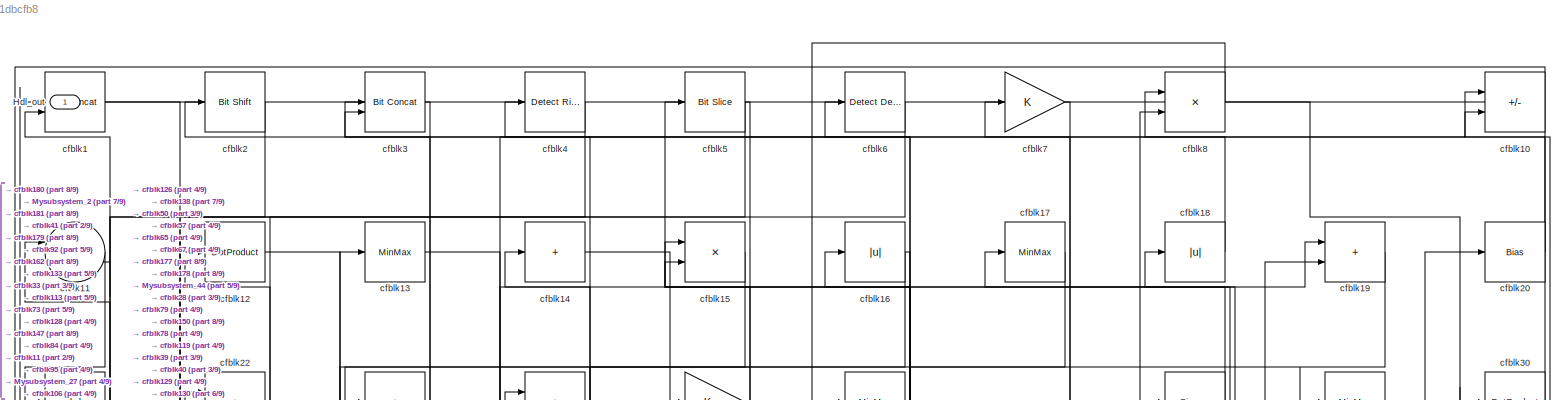
[diagram: root canvas - part 1/9, full width, top band]
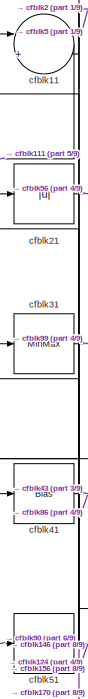
[diagram: root canvas - part 2/9, top left region]
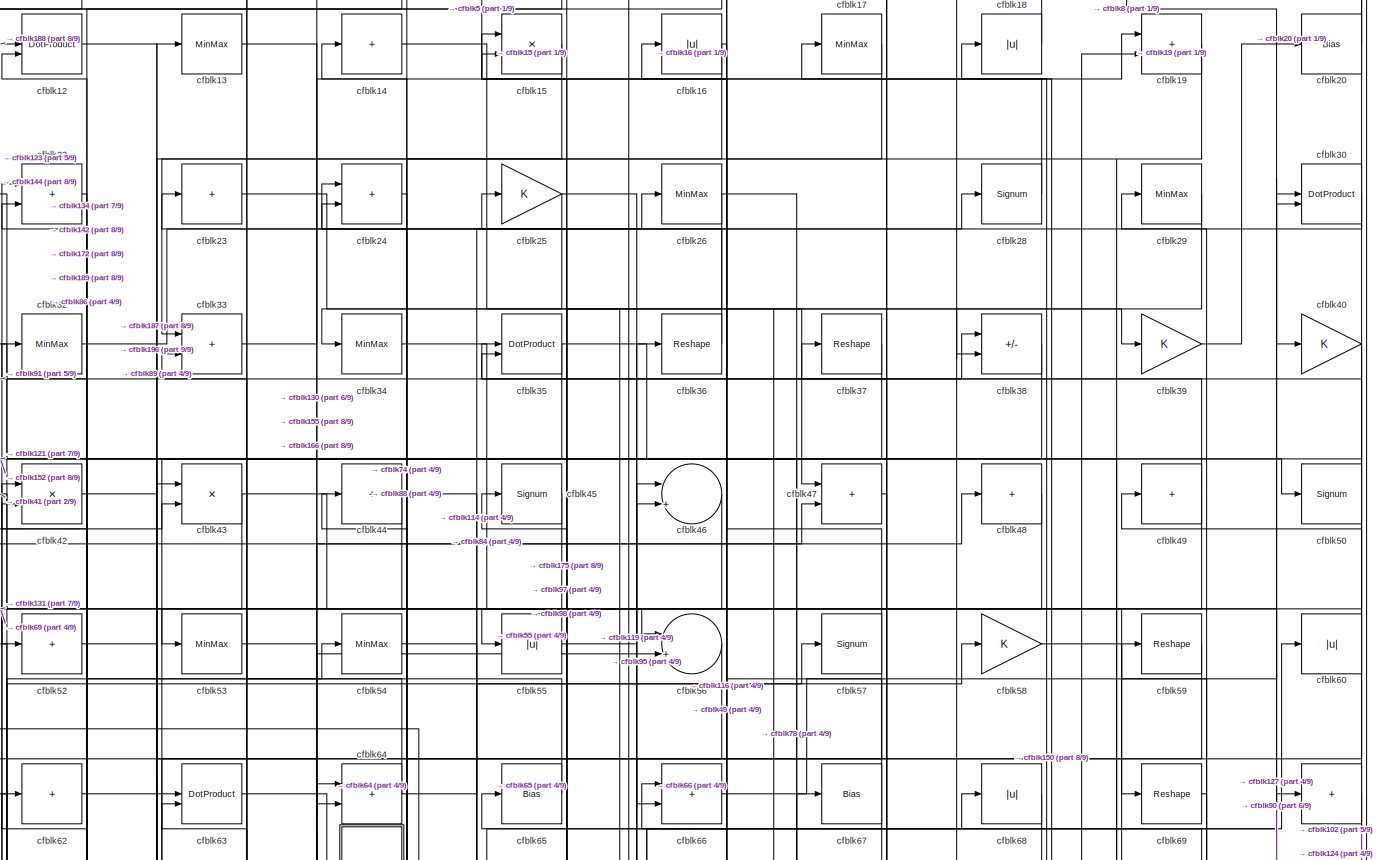
[diagram: root canvas - part 3/9, full width, top band]
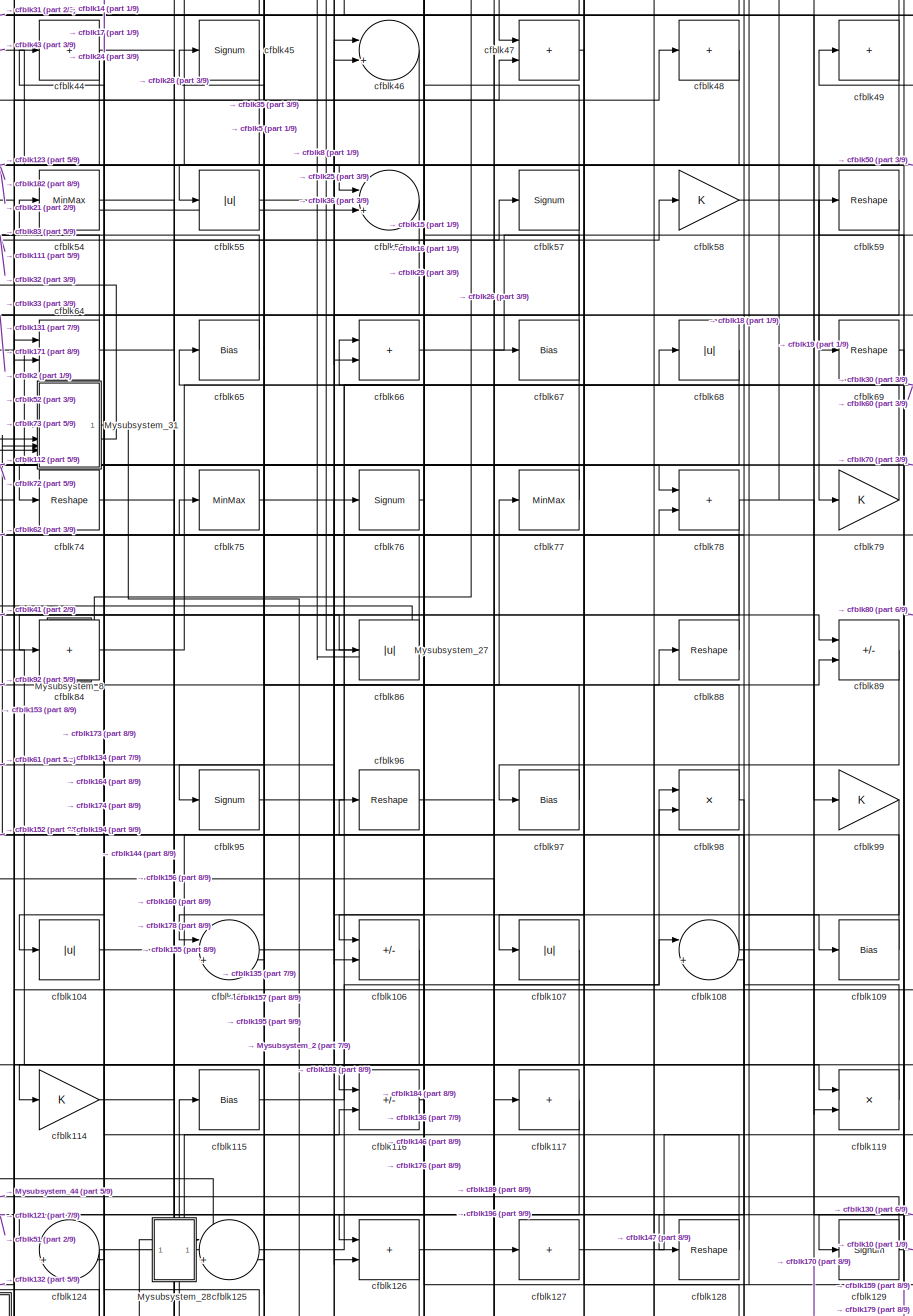
[diagram: root canvas - part 4/9, central region]
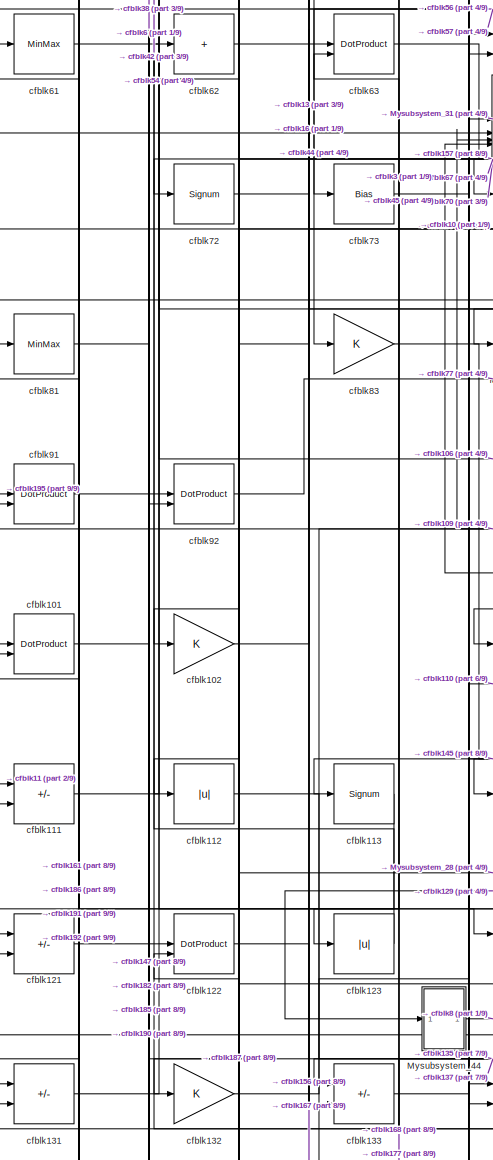
[diagram: root canvas - part 5/9, middle left region]
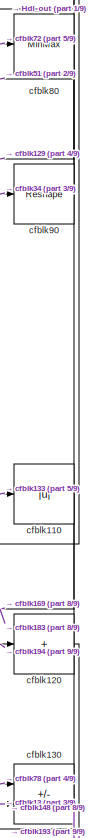
[diagram: root canvas - part 6/9, middle right region]
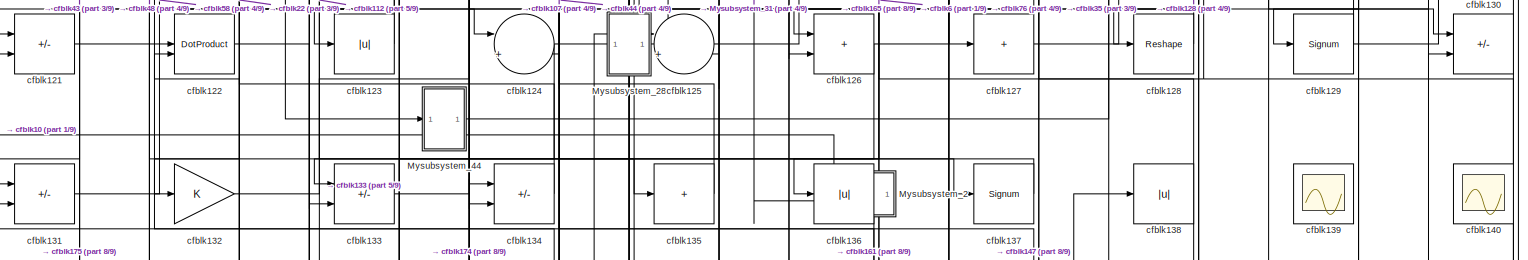
[diagram: root canvas - part 7/9, full width, middle band]
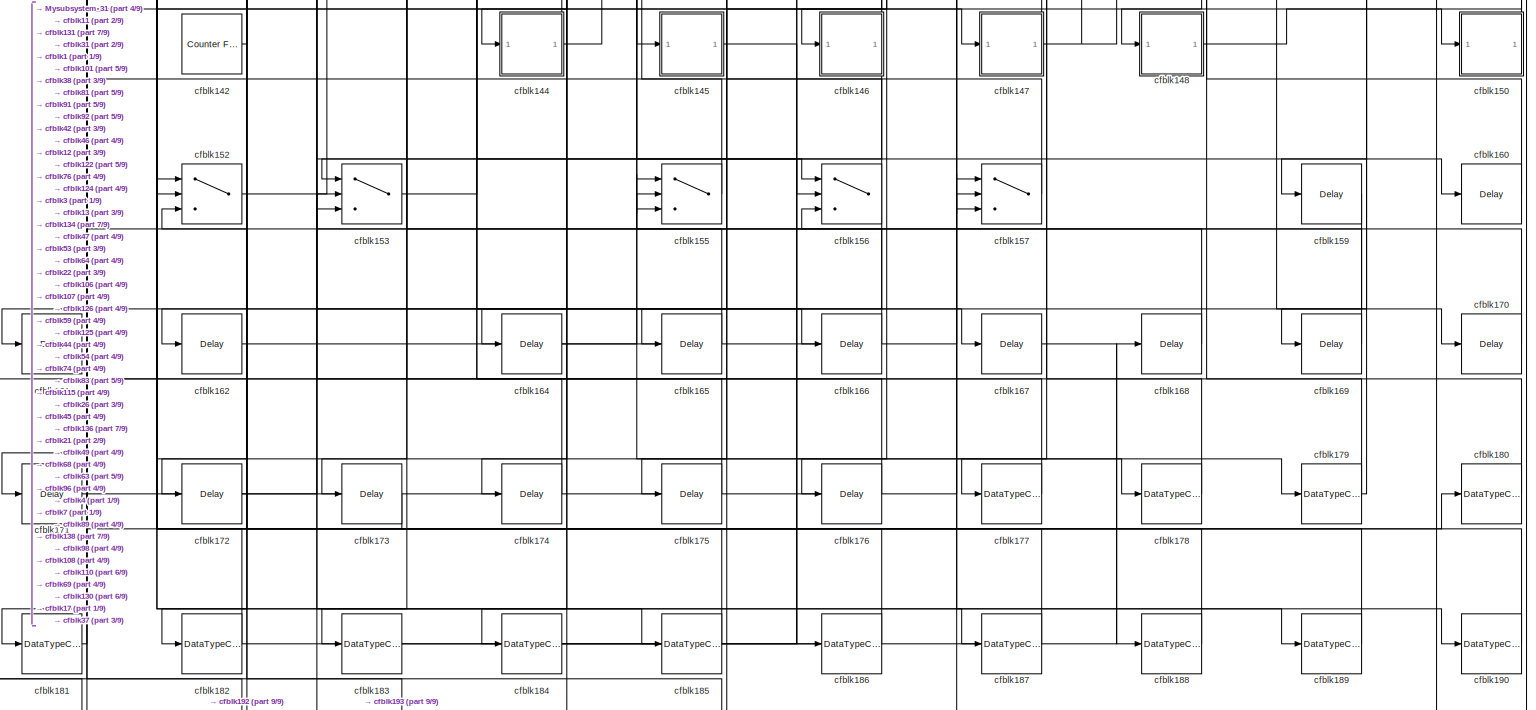
[diagram: root canvas - part 8/9, full width, bottom band]
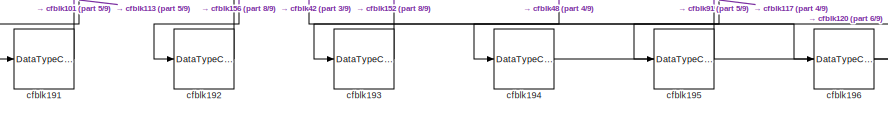
[diagram: root canvas - part 9/9, bottom left region]
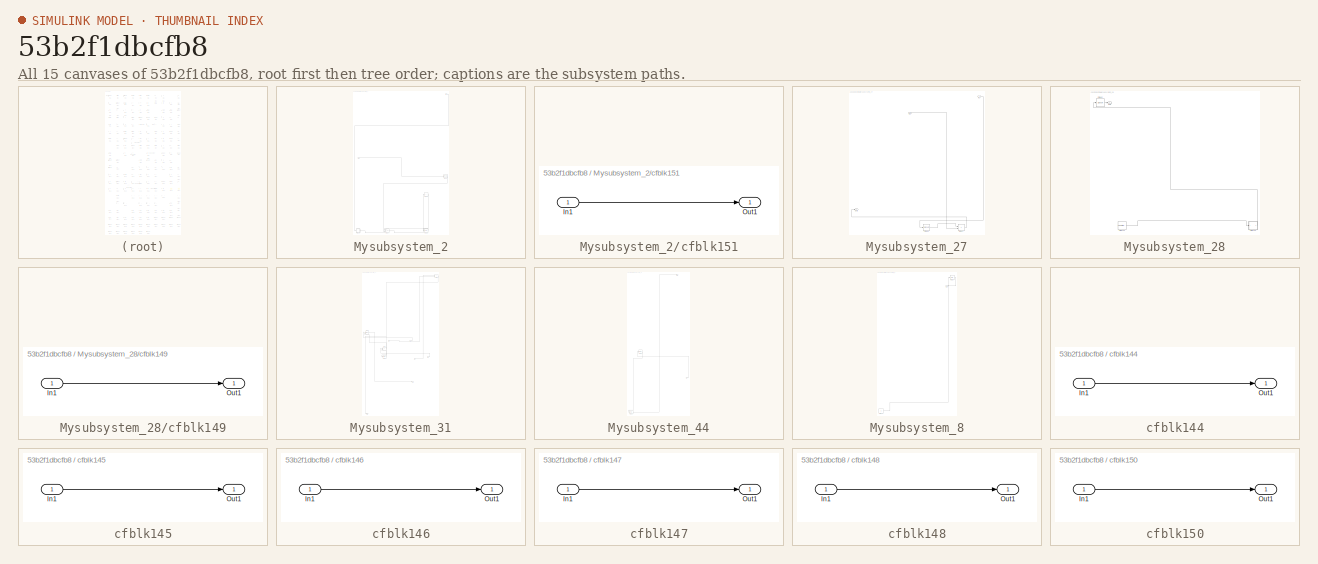
[diagram: thumbnail index - all 15 canvases of the model, root first then tree order]
MODEL slx_53b2f1dbcfb8
KIND model
CONFIG AbsTol = auto
CONFIG EnableMultiTasking = off
CONFIG FixedStep = auto
CONFIG MaxStep = auto
CONFIG MinStep = auto
CONFIG RelTol = 1e-3
CONFIG SampleTimeConstraint = Unconstrained
CONFIG SolverName = VariableStepAuto
CONFIG StartTime = 0.0
CONFIG StopTime = 10.0
BLOCK [Outport] Hdl_out
  OutDataTypeStr = uint8
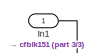
[diagram: Mysubsystem_2 - part 1/3, top right region]
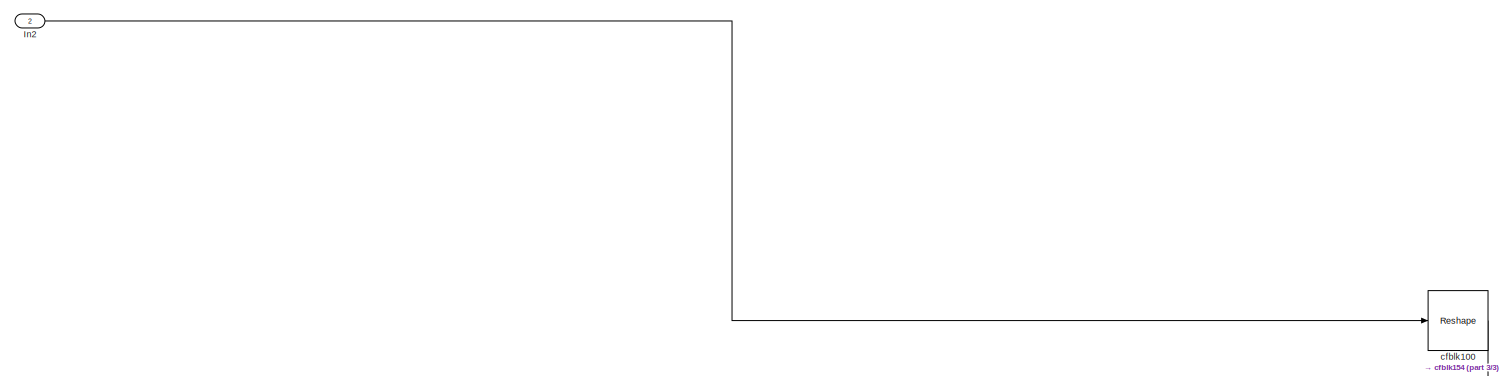
[diagram: Mysubsystem_2 - part 2/3, full width, middle band]
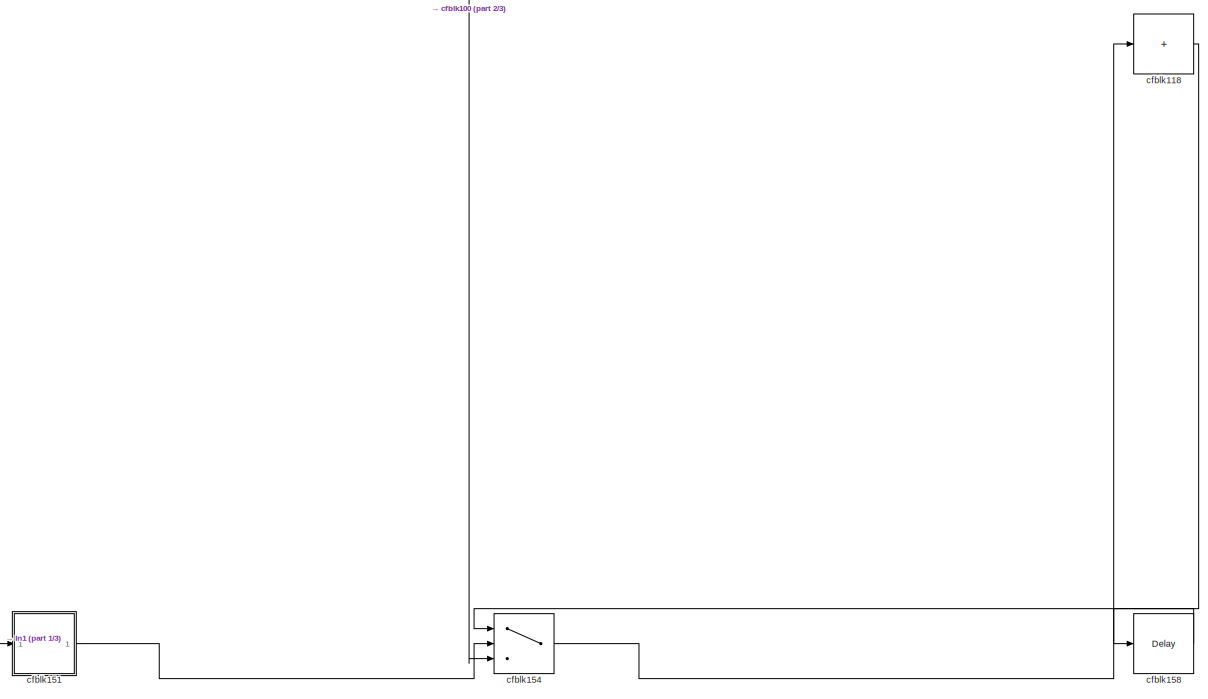
[diagram: Mysubsystem_2 - part 3/3, full width, bottom band]
BLOCK [SubSystem] Mysubsystem_2
  RTWFcnName = Mysubsystem_2
  RTWFcnNameOpts = User specified
  RTWFileNameOpts = Use function name
  RTWSystemCode = Reusable function
  TreatAsAtomicUnit = on
BLOCK [Inport] Mysubsystem_2/In1
BLOCK [Inport] Mysubsystem_2/In2
  Port = 2
BLOCK [Reshape] Mysubsystem_2/cfblk100
BLOCK [Sum] Mysubsystem_2/cfblk118
  IconShape = rectangular
  Inputs = +
BLOCK [SubSystem] Mysubsystem_2/cfblk151
  LibrarySourceBlock = hdlsllib/Ports &\nSubsystems/Subsystem
BLOCK [Inport] Mysubsystem_2/cfblk151/In1
BLOCK [Outport] Mysubsystem_2/cfblk151/Out1
BLOCK [Switch] Mysubsystem_2/cfblk154
  InputSameDT = off
  SaturateOnIntegerOverflow = off
BLOCK [Delay] Mysubsystem_2/cfblk158
  InputPortMap = u0
  SampleTime = 1
BLOCK [SubSystem] Mysubsystem_27
  RTWFcnName = Mysubsystem_27
  RTWFcnNameOpts = User specified
  RTWFileNameOpts = Use function name
  RTWSystemCode = Reusable function
  TreatAsAtomicUnit = on
BLOCK [Inport] Mysubsystem_27/In1
BLOCK [Inport] Mysubsystem_27/In2
  Port = 2
BLOCK [Outport] Mysubsystem_27/Out1
BLOCK [Signum] Mysubsystem_27/cfblk85
BLOCK [Sum] Mysubsystem_27/cfblk87
  IconShape = rectangular
BLOCK [SubSystem] Mysubsystem_28
  RTWFcnName = Mysubsystem_28
  RTWFcnNameOpts = User specified
  RTWFileNameOpts = Use function name
  RTWSystemCode = Reusable function
  TreatAsAtomicUnit = on
BLOCK [Outport] Mysubsystem_28/Out1
BLOCK [Reference] Mysubsystem_28/cfblk143  REF=hdlsllib/Sources/Counter
Limited
  SourceBlock = hdlsllib/Sources/Counter\nLimited
  SourceType = Counter Limited
BLOCK [SubSystem] Mysubsystem_28/cfblk149
  LibrarySourceBlock = hdlsllib/Ports &\nSubsystems/Subsystem
BLOCK [Inport] Mysubsystem_28/cfblk149/In1
BLOCK [Outport] Mysubsystem_28/cfblk149/Out1
BLOCK [Signum] Mysubsystem_28/cfblk82
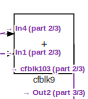
[diagram: Mysubsystem_31 - part 1/3, top right region]
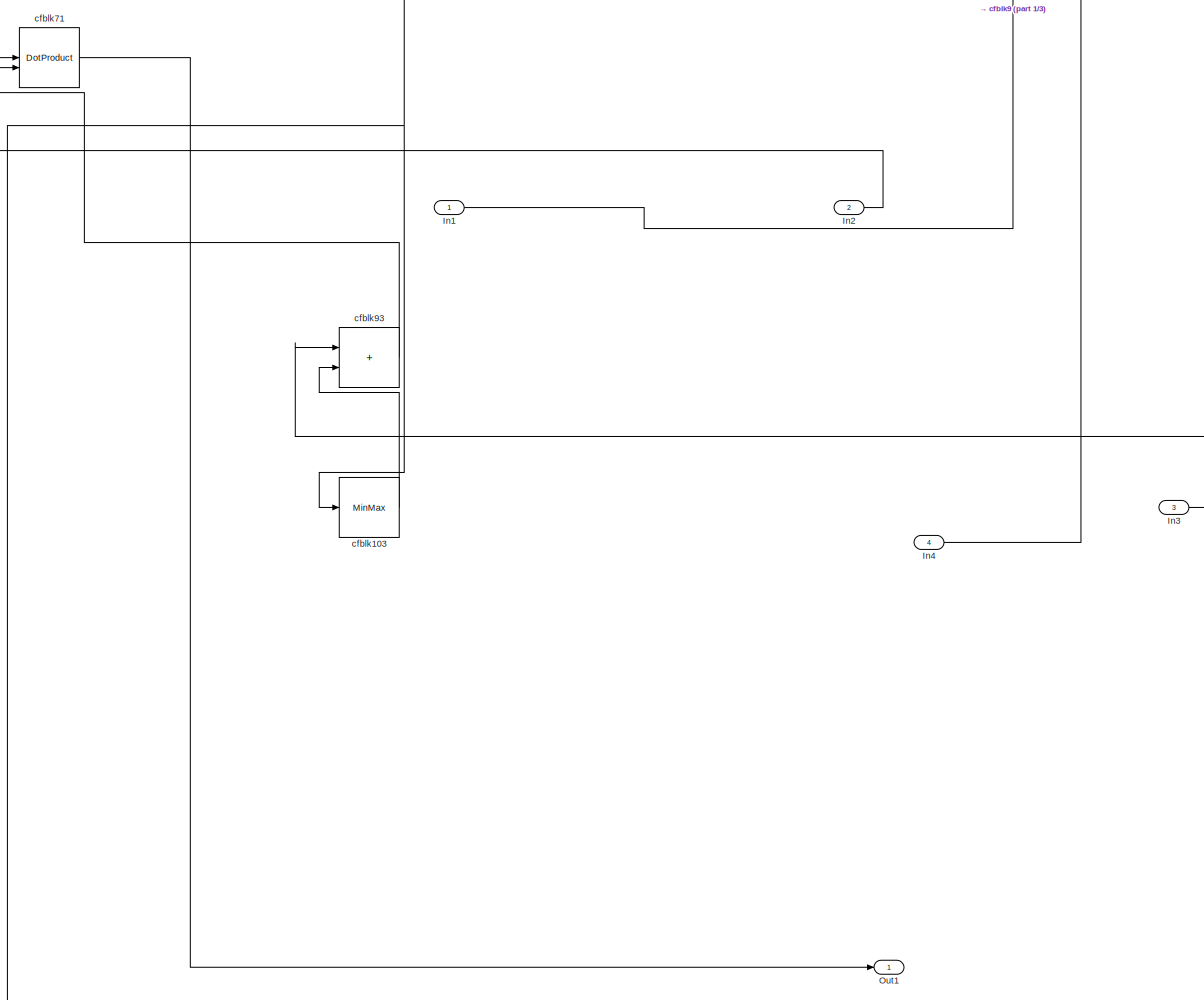
[diagram: Mysubsystem_31 - part 2/3, full width, middle band]
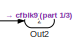
[diagram: Mysubsystem_31 - part 3/3, bottom left region]
BLOCK [SubSystem] Mysubsystem_31
  RTWFcnName = Mysubsystem_31
  RTWFcnNameOpts = User specified
  RTWFileNameOpts = Use function name
  RTWSystemCode = Reusable function
  TreatAsAtomicUnit = on
BLOCK [Inport] Mysubsystem_31/In1
BLOCK [Inport] Mysubsystem_31/In2
  Port = 2
BLOCK [Inport] Mysubsystem_31/In3
  Port = 3
BLOCK [Inport] Mysubsystem_31/In4
  Port = 4
BLOCK [Outport] Mysubsystem_31/Out1
BLOCK [Outport] Mysubsystem_31/Out2
  Port = 2
BLOCK [MinMax] Mysubsystem_31/cfblk103
BLOCK [DotProduct] Mysubsystem_31/cfblk71
  OutDataTypeStr = Inherit: Inherit via internal rule
BLOCK [Sum] Mysubsystem_31/cfblk9
  IconShape = rectangular
BLOCK [Sum] Mysubsystem_31/cfblk93
  IconShape = rectangular
BLOCK [SubSystem] Mysubsystem_44
  RTWFcnName = Mysubsystem_44
  RTWFcnNameOpts = User specified
  RTWFileNameOpts = Use function name
  RTWSystemCode = Reusable function
  TreatAsAtomicUnit = on
BLOCK [Inport] Mysubsystem_44/In1
BLOCK [Outport] Mysubsystem_44/Out1
BLOCK [Delay] Mysubsystem_44/cfblk163
  InputPortMap = u0
  SampleTime = 1
BLOCK [MinMax] Mysubsystem_44/cfblk94
BLOCK [SubSystem] Mysubsystem_8
  RTWFcnName = Mysubsystem_8
  RTWFcnNameOpts = User specified
  RTWFileNameOpts = Use function name
  RTWSystemCode = Reusable function
  TreatAsAtomicUnit = on
BLOCK [Outport] Mysubsystem_8/Out1
BLOCK [Constant] Mysubsystem_8/cfblk141
  SampleTime = -1
BLOCK [Bias] Mysubsystem_8/cfblk27
  Bias = 0.0
  SaturateOnIntegerOverflow = off
BLOCK [Reference] cfblk1  REF=hdlsllib/Logic and Bit
Operations/Bit Concat
  SourceBlock = hdlsllib/Logic and Bit\nOperations/Bit Concat
  SourceType = Bit Concat
BLOCK [Sum] cfblk10
  IconShape = rectangular
  Inputs = +-
  OutDataTypeStr = uint8
BLOCK [DotProduct] cfblk101
  OutDataTypeStr = uint8
BLOCK [Gain] cfblk102
  OutDataTypeStr = uint8
BLOCK [Abs] cfblk104
  OutDataTypeStr = uint8
  SaturateOnIntegerOverflow = off
BLOCK [Sum] cfblk105
  Inputs = |++
  OutDataTypeStr = uint8
BLOCK [Sum] cfblk106
  IconShape = rectangular
  Inputs = +-
  OutDataTypeStr = uint8
BLOCK [Abs] cfblk107
  OutDataTypeStr = uint8
  SaturateOnIntegerOverflow = off
BLOCK [Sum] cfblk108
  Inputs = |++
  OutDataTypeStr = uint8
BLOCK [Bias] cfblk109
  Bias = 0.0
  SaturateOnIntegerOverflow = off
BLOCK [Sum] cfblk11
  Inputs = |++
  OutDataTypeStr = uint8
BLOCK [Abs] cfblk110
  OutDataTypeStr = uint8
  SaturateOnIntegerOverflow = off
BLOCK [Sum] cfblk111
  IconShape = rectangular
  Inputs = +-
  OutDataTypeStr = uint8
BLOCK [Abs] cfblk112
  OutDataTypeStr = uint8
  SaturateOnIntegerOverflow = off
BLOCK [Signum] cfblk113
BLOCK [Gain] cfblk114
  OutDataTypeStr = uint8
BLOCK [Bias] cfblk115
  Bias = 0.0
  SaturateOnIntegerOverflow = off
BLOCK [Sum] cfblk116
  IconShape = rectangular
  Inputs = +-
  OutDataTypeStr = uint8
BLOCK [Sum] cfblk117
  IconShape = rectangular
  Inputs = +
  OutDataTypeStr = uint8
BLOCK [Product] cfblk119
  Inputs = */
  OutDataTypeStr = uint8
  RndMeth = Zero
  SaturateOnIntegerOverflow = on
BLOCK [DotProduct] cfblk12
  OutDataTypeStr = uint8
BLOCK [Sum] cfblk120
  IconShape = rectangular
  Inputs = +
  OutDataTypeStr = uint8
BLOCK [Sum] cfblk121
  IconShape = rectangular
  Inputs = +-
  OutDataTypeStr = uint8
BLOCK [DotProduct] cfblk122
  OutDataTypeStr = uint8
BLOCK [Abs] cfblk123
  OutDataTypeStr = uint8
  SaturateOnIntegerOverflow = off
BLOCK [Sum] cfblk124
  Inputs = |++
  OutDataTypeStr = uint8
BLOCK [Sum] cfblk125
  Inputs = |++
  OutDataTypeStr = uint8
BLOCK [Sum] cfblk126
  IconShape = rectangular
  OutDataTypeStr = uint8
BLOCK [Sum] cfblk127
  IconShape = rectangular
  Inputs = +
  OutDataTypeStr = uint8
BLOCK [Reshape] cfblk128
BLOCK [Signum] cfblk129
BLOCK [MinMax] cfblk13
  OutDataTypeStr = uint8
BLOCK [Sum] cfblk130
  IconShape = rectangular
  Inputs = +-
  OutDataTypeStr = uint8
BLOCK [Sum] cfblk131
  IconShape = rectangular
  Inputs = +-
  OutDataTypeStr = uint8
BLOCK [Gain] cfblk132
  OutDataTypeStr = uint8
BLOCK [Sum] cfblk133
  IconShape = rectangular
  Inputs = +-
  OutDataTypeStr = uint8
BLOCK [Sum] cfblk134
  IconShape = rectangular
  Inputs = +-
  OutDataTypeStr = uint8
BLOCK [Sum] cfblk135
  IconShape = rectangular
  Inputs = +
  OutDataTypeStr = uint8
BLOCK [Abs] cfblk136
  OutDataTypeStr = uint8
  SaturateOnIntegerOverflow = off
BLOCK [Signum] cfblk137
BLOCK [Abs] cfblk138
  OutDataTypeStr = uint8
  SaturateOnIntegerOverflow = off
BLOCK [Scope] cfblk139
  Floating = on
  NumInputPorts = 1
  ScopeSpecificationString = Simulink.scopes.TimeScopeBlockCfg('CurrentConfiguration', extmgr.ConfigurationSet(extmgr.Configuration('Core','General UI',true,'FigureColor',[0.156862745098039 0.156862745098039 0.156862745098039]),extmgr.Configuration('Core','Source UI',true),extmgr.Configuration('Sources','WiredSimulink',true,'DataLoggingVariableName','ScopeData1','DataLoggingSaveFormat','StructureWithTime','DataLoggingLimitDat...<+2713ch>
BLOCK [Sum] cfblk14
  IconShape = rectangular
  Inputs = +
  OutDataTypeStr = uint8
BLOCK [Scope] cfblk140
  Floating = on
  NumInputPorts = 1
  ScopeSpecificationString = Simulink.scopes.TimeScopeBlockCfg('CurrentConfiguration', extmgr.ConfigurationSet(extmgr.Configuration('Core','General UI',true,'FigureColor',[0.156862745098039 0.156862745098039 0.156862745098039]),extmgr.Configuration('Core','Source UI',true),extmgr.Configuration('Sources','WiredSimulink',true,'DataLoggingVariableName','ScopeData1','DataLoggingSaveFormat','StructureWithTime','DataLoggingLimitDat...<+2713ch>
BLOCK [Reference] cfblk142  REF=hdlsllib/Sources/Counter
Free-Running
  SourceBlock = hdlsllib/Sources/Counter\nFree-Running
  SourceType = Counter Free-Running
BLOCK [SubSystem] cfblk144
  LibrarySourceBlock = hdlsllib/Ports &\nSubsystems/Subsystem
BLOCK [Inport] cfblk144/In1
BLOCK [Outport] cfblk144/Out1
BLOCK [SubSystem] cfblk145
  LibrarySourceBlock = hdlsllib/Ports &\nSubsystems/Subsystem
BLOCK [Inport] cfblk145/In1
BLOCK [Outport] cfblk145/Out1
BLOCK [SubSystem] cfblk146
  LibrarySourceBlock = hdlsllib/Ports &\nSubsystems/Subsystem
BLOCK [Inport] cfblk146/In1
BLOCK [Outport] cfblk146/Out1
BLOCK [SubSystem] cfblk147
  LibrarySourceBlock = hdlsllib/Ports &\nSubsystems/Subsystem
BLOCK [Inport] cfblk147/In1
BLOCK [Outport] cfblk147/Out1
BLOCK [SubSystem] cfblk148
  LibrarySourceBlock = hdlsllib/Ports &\nSubsystems/Subsystem
BLOCK [Inport] cfblk148/In1
BLOCK [Outport] cfblk148/Out1
BLOCK [Product] cfblk15
  Inputs = */
  OutDataTypeStr = uint8
  RndMeth = Zero
  SaturateOnIntegerOverflow = on
BLOCK [SubSystem] cfblk150
  LibrarySourceBlock = hdlsllib/Ports &\nSubsystems/Subsystem
BLOCK [Inport] cfblk150/In1
BLOCK [Outport] cfblk150/Out1
BLOCK [Switch] cfblk152
  InputSameDT = off
  OutDataTypeStr = uint8
  SaturateOnIntegerOverflow = off
BLOCK [Switch] cfblk153
  InputSameDT = off
  OutDataTypeStr = uint8
  SaturateOnIntegerOverflow = off
BLOCK [Switch] cfblk155
  InputSameDT = off
  OutDataTypeStr = uint8
  SaturateOnIntegerOverflow = off
BLOCK [Switch] cfblk156
  InputSameDT = off
  OutDataTypeStr = uint8
  SaturateOnIntegerOverflow = off
BLOCK [Switch] cfblk157
  InputSameDT = off
  OutDataTypeStr = uint8
  SaturateOnIntegerOverflow = off
BLOCK [Delay] cfblk159
  InputPortMap = u0
  SampleTime = 1
BLOCK [Abs] cfblk16
  OutDataTypeStr = uint8
  SaturateOnIntegerOverflow = off
BLOCK [Delay] cfblk160
  InputPortMap = u0
  SampleTime = 1
BLOCK [Delay] cfblk161
  InputPortMap = u0
  SampleTime = 1
BLOCK [Delay] cfblk162
  InputPortMap = u0
  SampleTime = 1
BLOCK [Delay] cfblk164
  InputPortMap = u0
  SampleTime = 1
BLOCK [Delay] cfblk165
  InputPortMap = u0
  SampleTime = 1
BLOCK [Delay] cfblk166
  InputPortMap = u0
  SampleTime = 1
BLOCK [Delay] cfblk167
  InputPortMap = u0
  SampleTime = 1
BLOCK [Delay] cfblk168
  InputPortMap = u0
  SampleTime = 1
BLOCK [Delay] cfblk169
  InputPortMap = u0
  SampleTime = 1
BLOCK [MinMax] cfblk17
  OutDataTypeStr = uint8
BLOCK [Delay] cfblk170
  InputPortMap = u0
  SampleTime = 1
BLOCK [Delay] cfblk171
  InputPortMap = u0
  SampleTime = 1
BLOCK [Delay] cfblk172
  InputPortMap = u0
  SampleTime = 1
BLOCK [Delay] cfblk173
  InputPortMap = u0
  SampleTime = 1
BLOCK [Delay] cfblk174
  InputPortMap = u0
  SampleTime = 1
BLOCK [Delay] cfblk175
  InputPortMap = u0
  SampleTime = 1
BLOCK [Delay] cfblk176
  InputPortMap = u0
  SampleTime = 1
BLOCK [DataTypeConversion] cfblk177
  OutDataTypeStr = uint8
  RndMeth = Floor
  SaturateOnIntegerOverflow = off
BLOCK [DataTypeConversion] cfblk178
  OutDataTypeStr = uint8
  RndMeth = Floor
  SaturateOnIntegerOverflow = off
BLOCK [DataTypeConversion] cfblk179
  OutDataTypeStr = uint8
  RndMeth = Floor
  SaturateOnIntegerOverflow = off
BLOCK [Abs] cfblk18
  OutDataTypeStr = uint8
  SaturateOnIntegerOverflow = off
BLOCK [DataTypeConversion] cfblk180
  OutDataTypeStr = uint8
  RndMeth = Floor
  SaturateOnIntegerOverflow = off
BLOCK [DataTypeConversion] cfblk181
  OutDataTypeStr = uint8
  RndMeth = Floor
  SaturateOnIntegerOverflow = off
BLOCK [DataTypeConversion] cfblk182
  OutDataTypeStr = uint8
  RndMeth = Floor
  SaturateOnIntegerOverflow = off
BLOCK [DataTypeConversion] cfblk183
  OutDataTypeStr = uint8
  RndMeth = Floor
  SaturateOnIntegerOverflow = off
BLOCK [DataTypeConversion] cfblk184
  OutDataTypeStr = uint8
  RndMeth = Floor
  SaturateOnIntegerOverflow = off
BLOCK [DataTypeConversion] cfblk185
  OutDataTypeStr = uint8
  RndMeth = Floor
  SaturateOnIntegerOverflow = off
BLOCK [DataTypeConversion] cfblk186
  OutDataTypeStr = uint8
  RndMeth = Floor
  SaturateOnIntegerOverflow = off
BLOCK [DataTypeConversion] cfblk187
  OutDataTypeStr = uint8
  RndMeth = Floor
  SaturateOnIntegerOverflow = off
BLOCK [DataTypeConversion] cfblk188
  OutDataTypeStr = uint8
  RndMeth = Floor
  SaturateOnIntegerOverflow = off
BLOCK [DataTypeConversion] cfblk189
  OutDataTypeStr = uint8
  RndMeth = Floor
  SaturateOnIntegerOverflow = off
BLOCK [Sum] cfblk19
  IconShape = rectangular
  OutDataTypeStr = uint8
BLOCK [DataTypeConversion] cfblk190
  OutDataTypeStr = uint8
  RndMeth = Floor
  SaturateOnIntegerOverflow = off
BLOCK [DataTypeConversion] cfblk191
  OutDataTypeStr = uint8
  RndMeth = Floor
  SaturateOnIntegerOverflow = off
BLOCK [DataTypeConversion] cfblk192
  OutDataTypeStr = uint8
  RndMeth = Floor
  SaturateOnIntegerOverflow = off
BLOCK [DataTypeConversion] cfblk193
  OutDataTypeStr = uint8
  RndMeth = Floor
  SaturateOnIntegerOverflow = off
BLOCK [DataTypeConversion] cfblk194
  OutDataTypeStr = uint8
  RndMeth = Floor
  SaturateOnIntegerOverflow = off
BLOCK [DataTypeConversion] cfblk195
  OutDataTypeStr = uint8
  RndMeth = Floor
  SaturateOnIntegerOverflow = off
BLOCK [DataTypeConversion] cfblk196
  OutDataTypeStr = uint8
  RndMeth = Floor
  SaturateOnIntegerOverflow = off
BLOCK [Reference] cfblk2  REF=hdlsllib/Logic and Bit
Operations/Bit Shift
  SourceBlock = hdlsllib/Logic and Bit\nOperations/Bit Shift
  SourceType = Bit Shift
BLOCK [Bias] cfblk20
  Bias = 0.0
  SaturateOnIntegerOverflow = off
BLOCK [Abs] cfblk21
  OutDataTypeStr = uint8
  SaturateOnIntegerOverflow = off
BLOCK [Sum] cfblk22
  IconShape = rectangular
  OutDataTypeStr = uint8
BLOCK [Sum] cfblk23
  IconShape = rectangular
  Inputs = +
  OutDataTypeStr = uint8
BLOCK [Sum] cfblk24
  IconShape = rectangular
  OutDataTypeStr = uint8
BLOCK [Gain] cfblk25
  OutDataTypeStr = uint8
BLOCK [MinMax] cfblk26
  OutDataTypeStr = uint8
BLOCK [Signum] cfblk28
BLOCK [MinMax] cfblk29
  OutDataTypeStr = uint8
BLOCK [Reference] cfblk3  REF=hdlsllib/Logic and Bit
Operations/Bit Concat
  SourceBlock = hdlsllib/Logic and Bit\nOperations/Bit Concat
  SourceType = Bit Concat
BLOCK [DotProduct] cfblk30
  OutDataTypeStr = uint8
BLOCK [MinMax] cfblk31
  OutDataTypeStr = uint8
BLOCK [MinMax] cfblk32
  OutDataTypeStr = uint8
BLOCK [Sum] cfblk33
  IconShape = rectangular
  OutDataTypeStr = uint8
BLOCK [MinMax] cfblk34
  OutDataTypeStr = uint8
BLOCK [DotProduct] cfblk35
  OutDataTypeStr = uint8
BLOCK [Reshape] cfblk36
BLOCK [Reshape] cfblk37
BLOCK [Sum] cfblk38
  IconShape = rectangular
  Inputs = +-
  OutDataTypeStr = uint8
BLOCK [Gain] cfblk39
  OutDataTypeStr = uint8
BLOCK [Reference] cfblk4  REF=hdlsllib/Logic and Bit
Operations/Detect Rise
Nonnegative
  SourceBlock = hdlsllib/Logic and Bit\nOperations/Detect Rise\nNonnegative
  SourceType = Detect Rise Nonnegative
BLOCK [Gain] cfblk40
  OutDataTypeStr = uint8
BLOCK [Bias] cfblk41
  Bias = 0.0
  SaturateOnIntegerOverflow = off
BLOCK [Product] cfblk42
  Inputs = */
  OutDataTypeStr = uint8
  RndMeth = Zero
  SaturateOnIntegerOverflow = on
BLOCK [Product] cfblk43
  Inputs = */
  OutDataTypeStr = uint8
  RndMeth = Zero
  SaturateOnIntegerOverflow = on
BLOCK [Sum] cfblk44
  IconShape = rectangular
  Inputs = +
  OutDataTypeStr = uint8
BLOCK [Signum] cfblk45
BLOCK [Sum] cfblk46
  Inputs = |++
  OutDataTypeStr = uint8
BLOCK [Sum] cfblk47
  IconShape = rectangular
  OutDataTypeStr = uint8
BLOCK [Sum] cfblk48
  IconShape = rectangular
  Inputs = +
  OutDataTypeStr = uint8
BLOCK [Sum] cfblk49
  IconShape = rectangular
  Inputs = +
  OutDataTypeStr = uint8
BLOCK [Reference] cfblk5  REF=hdlsllib/Logic and Bit
Operations/Bit Slice
  SourceBlock = hdlsllib/Logic and Bit\nOperations/Bit Slice
  SourceType = Bit Slice
BLOCK [Signum] cfblk50
BLOCK [Sum] cfblk51
  IconShape = rectangular
  Inputs = +
  OutDataTypeStr = uint8
BLOCK [Sum] cfblk52
  IconShape = rectangular
  Inputs = +
  OutDataTypeStr = uint8
BLOCK [MinMax] cfblk53
  OutDataTypeStr = uint8
BLOCK [MinMax] cfblk54
  OutDataTypeStr = uint8
BLOCK [Abs] cfblk55
  OutDataTypeStr = uint8
  SaturateOnIntegerOverflow = off
BLOCK [Sum] cfblk56
  Inputs = |++
  OutDataTypeStr = uint8
BLOCK [Signum] cfblk57
BLOCK [Gain] cfblk58
  OutDataTypeStr = uint8
BLOCK [Reshape] cfblk59
BLOCK [Reference] cfblk6  REF=simulink/Logic and Bit
Operations/Detect
Decrease
  LibrarySourceBlock = hdlsllib/Logic and Bit\nOperations/Detect\nDecrease
  SourceBlock = simulink/Logic and Bit\nOperations/Detect\nDecrease
  SourceType = Detect Decrease
BLOCK [Abs] cfblk60
  OutDataTypeStr = uint8
  SaturateOnIntegerOverflow = off
BLOCK [MinMax] cfblk61
  OutDataTypeStr = uint8
BLOCK [Sum] cfblk62
  IconShape = rectangular
  Inputs = +
  OutDataTypeStr = uint8
BLOCK [DotProduct] cfblk63
  OutDataTypeStr = uint8
BLOCK [Sum] cfblk64
  IconShape = rectangular
  OutDataTypeStr = uint8
BLOCK [Bias] cfblk65
  Bias = 0.0
  SaturateOnIntegerOverflow = off
BLOCK [Sum] cfblk66
  IconShape = rectangular
  OutDataTypeStr = uint8
BLOCK [Bias] cfblk67
  Bias = 0.0
  SaturateOnIntegerOverflow = off
BLOCK [Abs] cfblk68
  OutDataTypeStr = uint8
  SaturateOnIntegerOverflow = off
BLOCK [Reshape] cfblk69
BLOCK [Gain] cfblk7
  OutDataTypeStr = uint8
BLOCK [Sum] cfblk70
  IconShape = rectangular
  Inputs = +
  OutDataTypeStr = uint8
BLOCK [Signum] cfblk72
BLOCK [Bias] cfblk73
  Bias = 0.0
  SaturateOnIntegerOverflow = off
BLOCK [Reshape] cfblk74
BLOCK [MinMax] cfblk75
  OutDataTypeStr = uint8
BLOCK [Signum] cfblk76
BLOCK [MinMax] cfblk77
  OutDataTypeStr = uint8
BLOCK [Sum] cfblk78
  IconShape = rectangular
  OutDataTypeStr = uint8
BLOCK [Gain] cfblk79
  OutDataTypeStr = uint8
BLOCK [Product] cfblk8
  Inputs = */
  OutDataTypeStr = uint8
  RndMeth = Zero
  SaturateOnIntegerOverflow = on
BLOCK [MinMax] cfblk80
  OutDataTypeStr = uint8
BLOCK [MinMax] cfblk81
  OutDataTypeStr = uint8
BLOCK [Gain] cfblk83
  OutDataTypeStr = uint8
BLOCK [Sum] cfblk84
  IconShape = rectangular
  Inputs = +
  OutDataTypeStr = uint8
BLOCK [Abs] cfblk86
  OutDataTypeStr = uint8
  SaturateOnIntegerOverflow = off
BLOCK [Reshape] cfblk88
BLOCK [Sum] cfblk89
  IconShape = rectangular
  Inputs = +-
  OutDataTypeStr = uint8
BLOCK [Reshape] cfblk90
BLOCK [DotProduct] cfblk91
  OutDataTypeStr = uint8
BLOCK [DotProduct] cfblk92
  OutDataTypeStr = uint8
BLOCK [Signum] cfblk95
BLOCK [Reshape] cfblk96
BLOCK [Bias] cfblk97
  Bias = 0.0
  SaturateOnIntegerOverflow = off
BLOCK [Product] cfblk98
  Inputs = */
  OutDataTypeStr = uint8
  RndMeth = Zero
  SaturateOnIntegerOverflow = on
BLOCK [Gain] cfblk99
  OutDataTypeStr = uint8
LINE Mysubsystem_2/In1:1 -> Mysubsystem_2/cfblk151:1
LINE Mysubsystem_2/In2:1 -> Mysubsystem_2/cfblk100:1
LINE Mysubsystem_2/cfblk100:1 -> Mysubsystem_2/cfblk154:3
LINE Mysubsystem_2/cfblk118:1 -> Mysubsystem_2/cfblk158:1
LINE Mysubsystem_2/cfblk151/In1:1 -> Mysubsystem_2/cfblk151/Out1:1
LINE Mysubsystem_2/cfblk151:1 -> Mysubsystem_2/cfblk154:2
LINE Mysubsystem_2/cfblk154:1 -> Mysubsystem_2/cfblk118:1
LINE Mysubsystem_2/cfblk158:1 -> Mysubsystem_2/cfblk154:1
LINE Mysubsystem_27/In1:1 -> Mysubsystem_27/cfblk85:1
LINE Mysubsystem_27/In2:1 -> Mysubsystem_27/cfblk87:2
LINE Mysubsystem_27/cfblk85:1 -> Mysubsystem_27/cfblk87:1
LINE Mysubsystem_27/cfblk87:1 -> Mysubsystem_27/Out1:1
LINE Mysubsystem_27:1 -> Mysubsystem_31:2
LINE Mysubsystem_28/cfblk143:1 -> Mysubsystem_28/cfblk149:1
LINE Mysubsystem_28/cfblk149/In1:1 -> Mysubsystem_28/cfblk149/Out1:1
LINE Mysubsystem_28/cfblk149:1 -> Mysubsystem_28/cfblk82:1
LINE Mysubsystem_28/cfblk82:1 -> Mysubsystem_28/Out1:1
NET Mysubsystem_28:1 -> cfblk132:1, cfblk78:2
LINE Mysubsystem_31/In1:1 -> Mysubsystem_31/cfblk9:2
LINE Mysubsystem_31/In2:1 -> Mysubsystem_31/cfblk71:1
LINE Mysubsystem_31/In3:1 -> Mysubsystem_31/cfblk93:1
LINE Mysubsystem_31/In4:1 -> Mysubsystem_31/cfblk9:1
LINE Mysubsystem_31/cfblk103:1 -> Mysubsystem_31/cfblk93:2
LINE Mysubsystem_31/cfblk71:1 -> Mysubsystem_31/Out1:1
LINE Mysubsystem_31/cfblk93:1 -> Mysubsystem_31/cfblk71:2
NET Mysubsystem_31/cfblk9:1 -> Mysubsystem_31/Out2:1, Mysubsystem_31/cfblk103:1
LINE Mysubsystem_31:1 -> Mysubsystem_2:2
LINE Mysubsystem_31:2 -> cfblk171:1
LINE Mysubsystem_44/In1:1 -> Mysubsystem_44/cfblk94:1
LINE Mysubsystem_44/cfblk163:1 -> Mysubsystem_44/Out1:1
LINE Mysubsystem_44/cfblk94:1 -> Mysubsystem_44/cfblk163:1
LINE Mysubsystem_44:1 -> cfblk8:2
LINE Mysubsystem_8/cfblk141:1 -> Mysubsystem_8/cfblk27:1
LINE Mysubsystem_8/cfblk27:1 -> Mysubsystem_8/Out1:1
NET Mysubsystem_8:1 -> cfblk105:1, cfblk47:1
LINE cfblk101:1 -> cfblk190:1
LINE cfblk102:1 -> cfblk13:1
LINE cfblk104:1 -> cfblk67:1
LINE cfblk105:1 -> cfblk88:1
LINE cfblk106:1 -> cfblk174:1
NET cfblk107:1 -> cfblk134:2, cfblk144:1
NET cfblk108:1 -> Mysubsystem_31:3, cfblk170:1
LINE cfblk109:1 -> cfblk61:1
LINE cfblk10:1 -> Mysubsystem_2:1
NET cfblk110:1 -> cfblk169:1, cfblk183:1
LINE cfblk111:1 -> cfblk54:1
LINE cfblk112:1 -> cfblk135:1
LINE cfblk113:1 -> cfblk191:1
LINE cfblk114:1 -> cfblk28:1
LINE cfblk115:1 -> cfblk98:1
LINE cfblk116:1 -> cfblk96:1
LINE cfblk117:1 -> cfblk195:1
NET cfblk119:1 -> cfblk66:1, cfblk75:1
LINE cfblk11:1 -> cfblk111:1
LINE cfblk120:1 -> cfblk193:1
NET cfblk121:1 -> cfblk137:1, cfblk48:1
NET cfblk122:1 -> cfblk156:1, cfblk167:1
LINE cfblk123:1 -> cfblk42:1
NET cfblk124:1 -> cfblk116:2, cfblk173:1
LINE cfblk125:1 -> cfblk68:1
NET cfblk126:1 -> Mysubsystem_31:4, cfblk108:1, cfblk184:1
LINE cfblk127:1 -> cfblk70:1
NET cfblk128:1 -> cfblk121:1, cfblk14:1
NET cfblk129:1 -> Mysubsystem_44:1, cfblk10:1, cfblk59:1
LINE cfblk12:1 -> cfblk187:1
NET cfblk130:1 -> Hdl_out:1, cfblk148:1
LINE cfblk131:1 -> cfblk58:1
LINE cfblk132:1 -> cfblk56:2
LINE cfblk133:1 -> cfblk110:1
LINE cfblk134:1 -> cfblk22:2
LINE cfblk135:1 -> cfblk44:1
LINE cfblk136:1 -> cfblk161:1
LINE cfblk137:1 -> cfblk133:1
NET cfblk138:1 -> cfblk165:1, cfblk6:1
NET cfblk13:1 -> cfblk130:2, cfblk166:1
LINE cfblk142:1 -> cfblk42:2
LINE cfblk144/In1:1 -> cfblk144/Out1:1
NET cfblk144:1 -> cfblk125:1, cfblk22:1
LINE cfblk145/In1:1 -> cfblk145/Out1:1
LINE cfblk145:1 -> cfblk186:1
LINE cfblk146/In1:1 -> cfblk146/Out1:1
NET cfblk146:1 -> cfblk153:1, cfblk21:1
LINE cfblk147/In1:1 -> cfblk147/Out1:1
NET cfblk147:1 -> cfblk138:1, cfblk4:1, cfblk89:2
LINE cfblk148/In1:1 -> cfblk148/Out1:1
LINE cfblk148:1 -> cfblk150:1
LINE cfblk14:1 -> Mysubsystem_27:2
LINE cfblk150/In1:1 -> cfblk150/Out1:1
NET cfblk150:1 -> cfblk17:1, cfblk37:1
LINE cfblk152:1 -> cfblk76:1
LINE cfblk153:1 -> cfblk47:2
LINE cfblk155:1 -> cfblk115:1
NET cfblk156:1 -> cfblk192:1, cfblk31:1
LINE cfblk157:1 -> cfblk45:1
LINE cfblk159:1 -> cfblk181:1
LINE cfblk15:1 -> cfblk33:1
LINE cfblk160:1 -> cfblk98:2
LINE cfblk161:1 -> cfblk91:2
LINE cfblk162:1 -> cfblk155:2
LINE cfblk164:1 -> cfblk157:1
LINE cfblk165:1 -> cfblk153:2
LINE cfblk166:1 -> cfblk155:1
LINE cfblk167:1 -> cfblk188:1
LINE cfblk168:1 -> cfblk63:2
LINE cfblk169:1 -> cfblk156:3
NET cfblk16:1 -> cfblk126:1, cfblk133:2, cfblk65:1
LINE cfblk170:1 -> cfblk11:1
LINE cfblk171:1 -> cfblk153:3
LINE cfblk172:1 -> cfblk157:2
LINE cfblk173:1 -> cfblk180:1
LINE cfblk174:1 -> cfblk134:1
LINE cfblk175:1 -> cfblk131:2
LINE cfblk176:1 -> cfblk64:1
NET cfblk177:1 -> cfblk3:2, cfblk63:1
LINE cfblk178:1 -> cfblk7:1
NET cfblk179:1 -> cfblk108:2, cfblk49:1
LINE cfblk17:1 -> cfblk84:1
LINE cfblk180:1 -> cfblk1:1
LINE cfblk181:1 -> cfblk1:2
NET cfblk182:1 -> cfblk168:1, cfblk92:1
LINE cfblk183:1 -> cfblk46:1
LINE cfblk184:1 -> cfblk46:2
LINE cfblk185:1 -> cfblk122:1
LINE cfblk186:1 -> cfblk81:1
LINE cfblk187:1 -> cfblk122:2
LINE cfblk188:1 -> cfblk12:1
LINE cfblk189:1 -> cfblk12:2
LINE cfblk18:1 -> cfblk8:1
LINE cfblk190:1 -> cfblk152:1
LINE cfblk191:1 -> cfblk101:1
LINE cfblk192:1 -> cfblk101:2
LINE cfblk193:1 -> cfblk152:3
LINE cfblk194:1 -> cfblk120:1
LINE cfblk195:1 -> cfblk91:1
LINE cfblk196:1 -> cfblk117:1
NET cfblk19:1 -> cfblk106:1, cfblk119:2
LINE cfblk1:1 -> cfblk179:1
LINE cfblk20:1 -> cfblk3:1
LINE cfblk21:1 -> cfblk56:1
LINE cfblk22:1 -> cfblk52:1
LINE cfblk23:1 -> cfblk39:1
LINE cfblk24:1 -> cfblk74:1
NET cfblk25:1 -> cfblk119:1, cfblk34:1
NET cfblk26:1 -> cfblk175:1, cfblk78:1
LINE cfblk28:1 -> cfblk5:1
NET cfblk29:1 -> cfblk116:1, cfblk38:2
LINE cfblk2:1 -> cfblk41:1
LINE cfblk30:1 -> cfblk24:2
LINE cfblk31:1 -> cfblk99:1
LINE cfblk32:1 -> cfblk26:1
LINE cfblk33:1 -> cfblk19:1
LINE cfblk34:1 -> cfblk90:1
NET cfblk35:1 -> cfblk121:2, cfblk127:1
LINE cfblk36:1 -> cfblk23:1
LINE cfblk37:1 -> cfblk172:1
LINE cfblk38:1 -> cfblk152:2
LINE cfblk39:1 -> cfblk20:1
LINE cfblk3:1 -> cfblk113:1
LINE cfblk40:1 -> cfblk53:1
NET cfblk41:1 -> cfblk43:2, cfblk86:1
NET cfblk42:1 -> cfblk196:1, cfblk50:1
NET cfblk43:1 -> cfblk131:1, cfblk69:1
NET cfblk44:1 -> cfblk156:2, cfblk83:1
LINE cfblk45:1 -> cfblk123:1
LINE cfblk46:1 -> cfblk182:1
LINE cfblk47:1 -> cfblk107:1
LINE cfblk48:1 -> cfblk194:1
NET cfblk49:1 -> cfblk146:1, cfblk25:1
LINE cfblk4:1 -> cfblk162:1
NET cfblk50:1 -> cfblk15:1, cfblk16:1, cfblk55:1
LINE cfblk51:1 -> cfblk124:1
LINE cfblk52:1 -> cfblk64:2
LINE cfblk53:1 -> cfblk155:3
LINE cfblk54:1 -> cfblk178:1
LINE cfblk55:1 -> cfblk36:1
LINE cfblk56:1 -> cfblk73:1
NET cfblk57:1 -> cfblk111:2, cfblk125:2, cfblk2:1
LINE cfblk58:1 -> cfblk79:1
LINE cfblk59:1 -> cfblk164:1
NET cfblk5:1 -> cfblk11:2, cfblk95:1
NET cfblk60:1 -> cfblk29:1, cfblk66:2
LINE cfblk61:1 -> cfblk106:2
NET cfblk62:1 -> cfblk43:1, cfblk89:1
LINE cfblk63:1 -> cfblk157:3
NET cfblk64:1 -> cfblk33:2, cfblk57:1
LINE cfblk65:1 -> cfblk32:1
LINE cfblk66:1 -> cfblk30:2
NET cfblk67:1 -> cfblk112:1, cfblk15:2
NET cfblk68:1 -> cfblk105:2, cfblk176:1
LINE cfblk69:1 -> cfblk159:1
LINE cfblk6:1 -> cfblk92:2
NET cfblk70:1 -> cfblk102:1, cfblk124:2
LINE cfblk72:1 -> cfblk80:1
LINE cfblk73:1 -> cfblk10:2
LINE cfblk74:1 -> cfblk160:1
LINE cfblk75:1 -> cfblk109:1
LINE cfblk76:1 -> cfblk136:1
LINE cfblk77:1 -> cfblk72:1
NET cfblk78:1 -> cfblk104:1, cfblk130:1, cfblk19:2
LINE cfblk79:1 -> cfblk18:1
LINE cfblk7:1 -> cfblk177:1
LINE cfblk80:1 -> cfblk129:1
LINE cfblk81:1 -> cfblk185:1
NET cfblk83:1 -> Mysubsystem_31:1, cfblk145:1
NET cfblk84:1 -> cfblk126:2, cfblk60:1
LINE cfblk86:1 -> cfblk62:1
LINE cfblk88:1 -> cfblk24:1
LINE cfblk89:1 -> cfblk97:1
NET cfblk8:1 -> Mysubsystem_27:1, cfblk40:1
LINE cfblk90:1 -> cfblk51:1
NET cfblk91:1 -> cfblk147:1, cfblk38:1
LINE cfblk92:1 -> cfblk77:1
LINE cfblk95:1 -> cfblk30:1
LINE cfblk96:1 -> cfblk189:1
LINE cfblk97:1 -> cfblk35:1
NET cfblk98:1 -> cfblk114:1, cfblk35:2
LINE cfblk99:1 -> cfblk128:1
note: NET lines group one-source signal fan-out (src -> all destinations, sorted); 1:1 wires keep LINE
